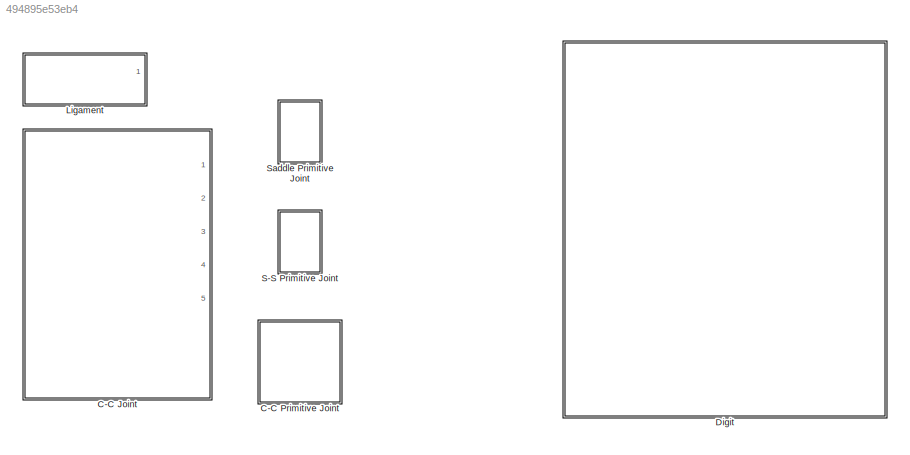
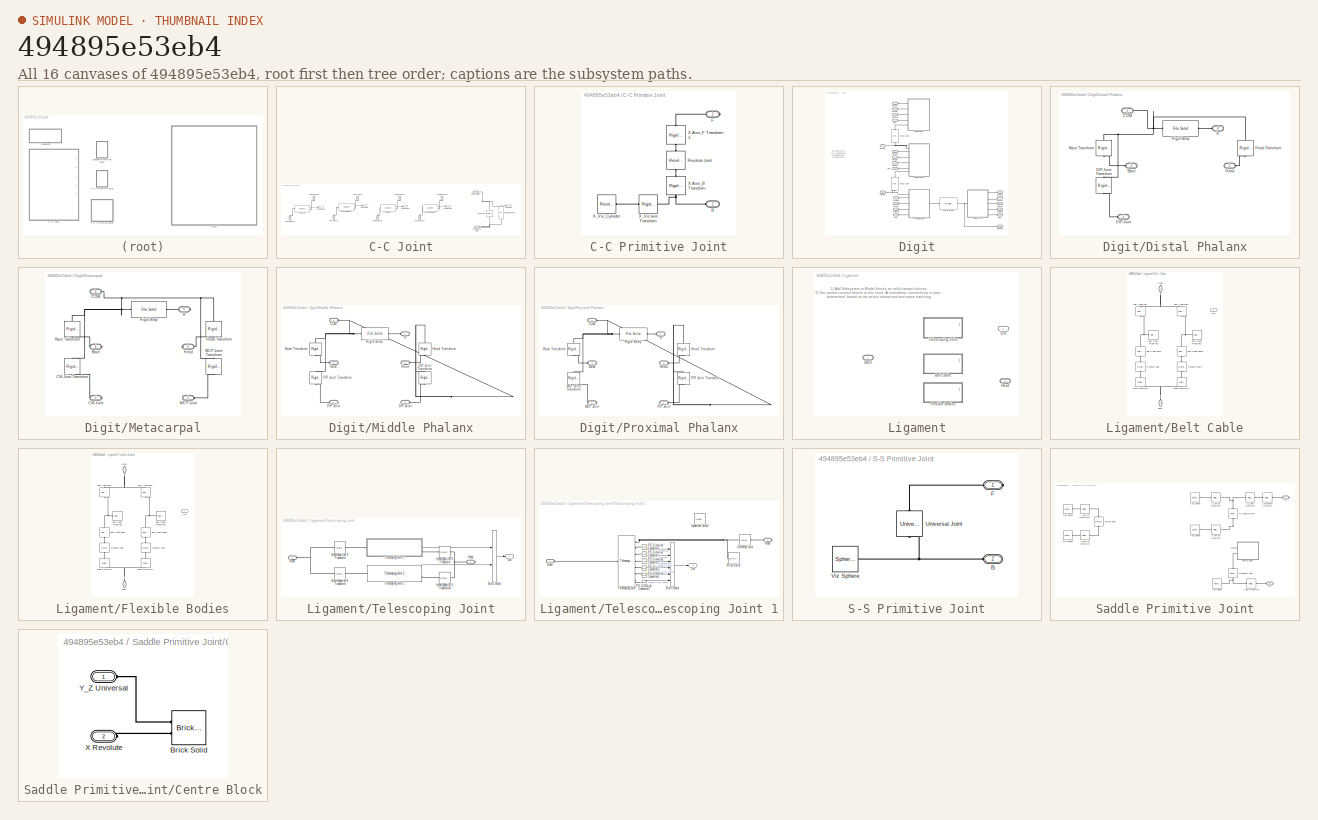
[diagram: thumbnail index - all 16 canvases of the model, root first then tree order]
MODEL slx_494895e53eb4
KIND library
CONFIG AbsTol = auto
CONFIG EnableMultiTasking = off
CONFIG FixedStep = auto
CONFIG MaxStep = auto
CONFIG MinStep = auto
CONFIG RelTol = 1e-3
CONFIG SampleTimeConstraint = Unconstrained
CONFIG SolverName = VariableStepAuto
CONFIG StartTime = 0.0
CONFIG StopTime = 10.0
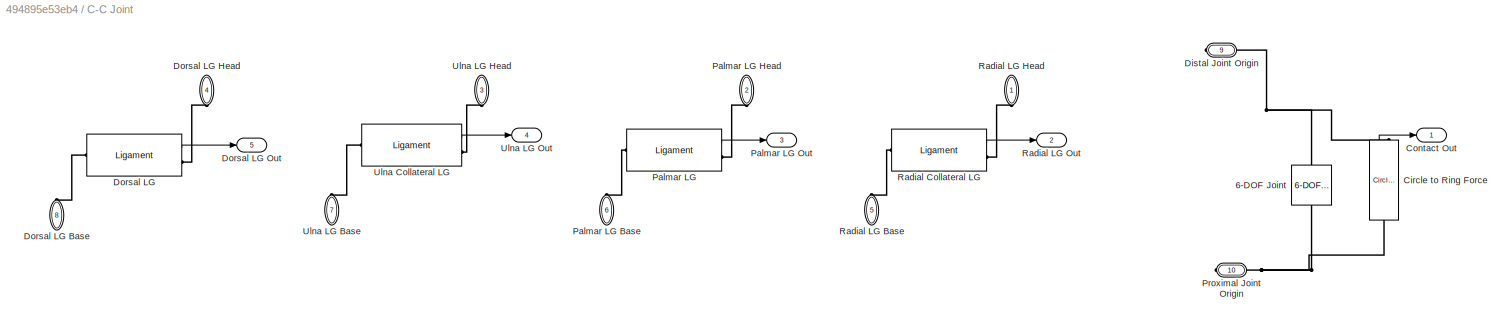
BLOCK [SubSystem] C-C Joint
  PortSchema = {"entries":[{"content":{"sides":[{"content":{"connectorIds":["LConn1","LConn2","LConn3","LConn4","LConn5","LConn6","LConn7","LConn8"]},"type":"ConnectorPlacement.EquallySpacedRectSide","uuid":"de75d0fa-dcb7-4671-a193-b6d8e2533622"},{"content":{"connectorIds":["RConn1","Out1","Out2","Out3","Out4","Out5","RConn2"],"side":"RIGHT"},"type":"ConnectorPlacement.EquallySpacedRectSide","uuid":"61947ab9-5bc...<+352ch>
  Ports = [0, 5, 0, 0, 0, 8, 2]
  RequestExecContextInheritance = off
BLOCK [Reference] C-C Joint/6-DOF Joint  REF=sm_lib/Joints/6-DOF Joint
  NameLocation = right
  Ports = [0, 0, 0, 0, 0, 1, 1]
  SourceBlock = sm_lib/Joints/6-DOF Joint
  SourceProductBaseCode = MS
  SourceType = 6-DOF Joint
BLOCK [Reference] C-C Joint/Circle to Ring Force  REF=Contact_Forces_Lib/2D/Circle to Ring Force
  NameLocation = left
  Ports = [0, 1, 0, 0, 0, 1, 1]
  SourceBlock = Contact_Forces_Lib/2D/Circle to Ring Force
  SourceType = Circle to Ring Force
BLOCK [Outport] C-C Joint/Contact Out
BLOCK [PMIOPort] C-C Joint/Distal Joint Origin
  Port = 9
  Side = Right
BLOCK [Reference] C-C Joint/Dorsal LG  REF=$bdroot/Ligament
  NameLocation = top
  Ports = [0, 1, 0, 0, 0, 1, 1]
  SourceBlock = $bdroot/Ligament
BLOCK [PMIOPort] C-C Joint/Dorsal LG Base
  Port = 8
  Side = Left
BLOCK [PMIOPort] C-C Joint/Dorsal LG Head
  NameLocation = right
  Port = 4
  Side = Left
BLOCK [Outport] C-C Joint/Dorsal LG Out
  Port = 5
BLOCK [Reference] C-C Joint/Palmar LG  REF=$bdroot/Ligament
  Ports = [0, 1, 0, 0, 0, 1, 1]
  SourceBlock = $bdroot/Ligament
BLOCK [PMIOPort] C-C Joint/Palmar LG Base
  Port = 6
  Side = Left
BLOCK [PMIOPort] C-C Joint/Palmar LG Head
  NameLocation = top
  Port = 2
  Side = Left
BLOCK [Outport] C-C Joint/Palmar LG Out
  Port = 3
BLOCK [PMIOPort] C-C Joint/Proximal Joint Origin
  Port = 10
  Side = Right
BLOCK [Reference] C-C Joint/Radial Collateral LG  REF=$bdroot/Ligament
  Ports = [0, 1, 0, 0, 0, 1, 1]
  SourceBlock = $bdroot/Ligament
BLOCK [PMIOPort] C-C Joint/Radial LG Base
  Port = 5
  Side = Left
BLOCK [PMIOPort] C-C Joint/Radial LG Head
  NameLocation = top
  Side = Left
BLOCK [Outport] C-C Joint/Radial LG Out
  Port = 2
BLOCK [Reference] C-C Joint/Ulna Collateral LG  REF=$bdroot/Ligament
  Ports = [0, 1, 0, 0, 0, 1, 1]
  SourceBlock = $bdroot/Ligament
BLOCK [PMIOPort] C-C Joint/Ulna LG Base
  Port = 7
  Side = Left
BLOCK [PMIOPort] C-C Joint/Ulna LG Head
  NameLocation = top
  Port = 3
  Side = Left
BLOCK [Outport] C-C Joint/Ulna LG Out
  Port = 4
BLOCK [SubSystem] C-C Primitive Joint
  NameLocation = left
  Ports = [0, 0, 0, 0, 0, 1, 1]
  RequestExecContextInheritance = off
BLOCK [PMIOPort] C-C Primitive Joint/B
  Port = 2
  Side = Left
BLOCK [PMIOPort] C-C Primitive Joint/F
  Side = Right
BLOCK [Reference] C-C Primitive Joint/Revolute Joint  REF=sm_lib/Joints/Revolute Joint
  NameLocation = right
  Ports = [0, 0, 0, 0, 0, 1, 1]
  SourceBlock = sm_lib/Joints/Revolute Joint
  SourceProductBaseCode = MS
  SourceType = Revolute Joint
BLOCK [Reference] C-C Primitive Joint/X Axis_B Transform  REF=sm_lib/Frames and
Transforms/Rigid
Transform
  NameLocation = left
  Ports = [0, 0, 0, 0, 0, 1, 1]
  SourceBlock = sm_lib/Frames and\nTransforms/Rigid\nTransform
  SourceProductBaseCode = MS
  SourceType = Rigid\nTransform
BLOCK [Reference] C-C Primitive Joint/X Axis_F Transform1  REF=sm_lib/Frames and
Transforms/Rigid
Transform
  NameLocation = left
  Ports = [0, 0, 0, 0, 0, 1, 1]
  SourceBlock = sm_lib/Frames and\nTransforms/Rigid\nTransform
  SourceProductBaseCode = MS
  SourceType = Rigid\nTransform
BLOCK [Reference] C-C Primitive Joint/X_Viz axis Transform  REF=sm_lib/Frames and
Transforms/Rigid
Transform
  Ports = [0, 0, 0, 0, 0, 1, 1]
  SourceBlock = sm_lib/Frames and\nTransforms/Rigid\nTransform
  SourceProductBaseCode = MS
  SourceType = Rigid\nTransform
BLOCK [Reference] C-C Primitive Joint/X_Viz_Cylinder  REF=sm_lib/Body Elements/Revolved Solid
  Ports = [0, 0, 0, 0, 0, 0, 1]
  SourceBlock = sm_lib/Body Elements/Revolved Solid
  SourceProductBaseCode = MS
  SourceType = Revolved Solid
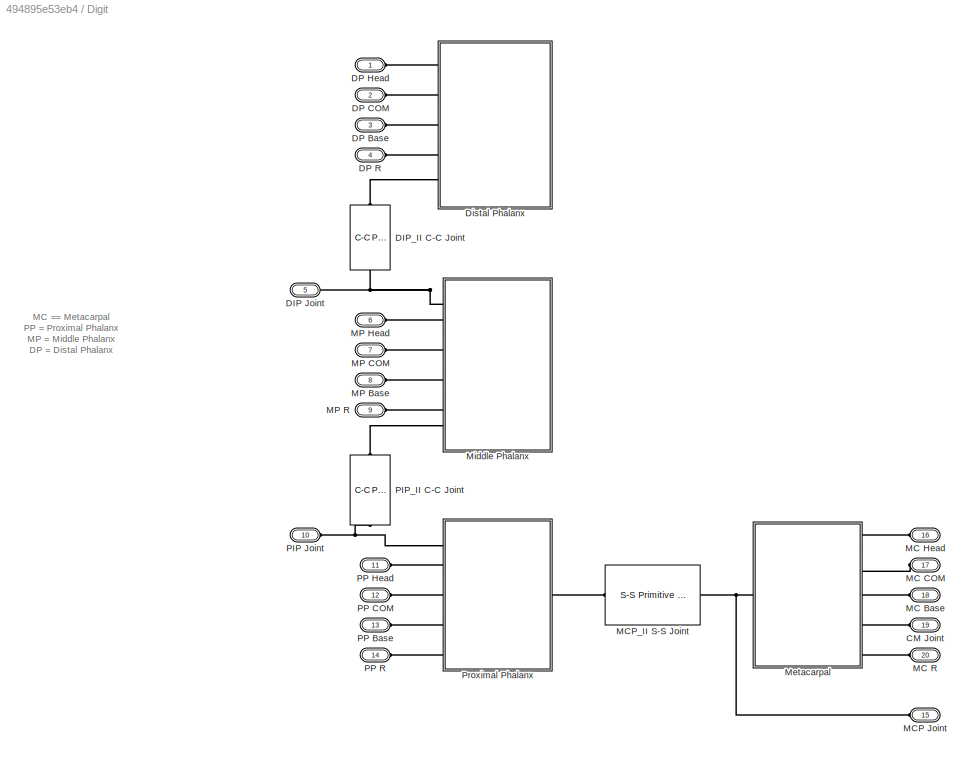
BLOCK [SubSystem] Digit
  Ports = [0, 0, 0, 0, 0, 20]
  RequestExecContextInheritance = off
BLOCK [PMIOPort] Digit/CM Joint
  Port = 19
  Side = Left
BLOCK [PMIOPort] Digit/DIP Joint
  Port = 5
  Side = Left
BLOCK [Reference] Digit/DIP_II C-C Joint  REF=$bdroot/C-C Primitive Joint
  NameLocation = left
  Ports = [0, 0, 0, 0, 0, 1, 1]
  SourceBlock = $bdroot/C-C Primitive Joint
BLOCK [PMIOPort] Digit/DP Base
  Port = 3
  Side = Left
BLOCK [PMIOPort] Digit/DP COM
  Port = 2
  Side = Left
BLOCK [PMIOPort] Digit/DP Head
  Side = Left
BLOCK [PMIOPort] Digit/DP R
  Port = 4
  Side = Left
BLOCK [SubSystem] Digit/Distal Phalanx
  Ports = [0, 0, 0, 0, 0, 5]
  RequestExecContextInheritance = off
BLOCK [PMIOPort] Digit/Distal Phalanx/Base
  Port = 3
  Side = Left
BLOCK [Reference] Digit/Distal Phalanx/Base Transform  REF=sm_lib/Frames and
Transforms/Rigid
Transform
  NameLocation = left
  Ports = [0, 0, 0, 0, 0, 1, 1]
  SourceBlock = sm_lib/Frames and\nTransforms/Rigid\nTransform
  SourceProductBaseCode = MS
  SourceType = Rigid\nTransform
BLOCK [PMIOPort] Digit/Distal Phalanx/COM
  Port = 2
  Side = Left
BLOCK [PMIOPort] Digit/Distal Phalanx/DIP Joint
  Port = 5
  Side = Left
BLOCK [Reference] Digit/Distal Phalanx/DIP Joint Transform  REF=sm_lib/Frames and
Transforms/Rigid
Transform
  NameLocation = left
  Ports = [0, 0, 0, 0, 0, 1, 1]
  SourceBlock = sm_lib/Frames and\nTransforms/Rigid\nTransform
  SourceProductBaseCode = MS
  SourceType = Rigid\nTransform
BLOCK [PMIOPort] Digit/Distal Phalanx/Head
  Side = Left
BLOCK [Reference] Digit/Distal Phalanx/Head Transform  REF=sm_lib/Frames and
Transforms/Rigid
Transform
  NameLocation = left
  Ports = [0, 0, 0, 0, 0, 1, 1]
  SourceBlock = sm_lib/Frames and\nTransforms/Rigid\nTransform
  SourceProductBaseCode = MS
  SourceType = Rigid\nTransform
BLOCK [PMIOPort] Digit/Distal Phalanx/R
  Port = 4
  Side = Left
BLOCK [Reference] Digit/Distal Phalanx/Rigid Body  REF=sm_lib/Body Elements/File Solid
  Ports = [0, 0, 0, 0, 0, 1, 1]
  SourceBlock = sm_lib/Body Elements/File Solid
  SourceProductBaseCode = MS
  SourceType = File Solid
BLOCK [PMIOPort] Digit/MC Base
  Port = 18
  Side = Left
BLOCK [PMIOPort] Digit/MC COM
  Port = 17
  Side = Left
BLOCK [PMIOPort] Digit/MC Head
  Port = 16
  Side = Left
BLOCK [PMIOPort] Digit/MC R
  Port = 20
  Side = Left
BLOCK [PMIOPort] Digit/MCP Joint
  Port = 15
  Side = Left
BLOCK [Reference] Digit/MCP_II S-S Joint  REF=$bdroot/S-S Primitive Joint
  Ports = [0, 0, 0, 0, 0, 1, 1]
  SourceBlock = $bdroot/S-S Primitive Joint
BLOCK [PMIOPort] Digit/MP Base
  Port = 8
  Side = Left
BLOCK [PMIOPort] Digit/MP COM
  Port = 7
  Side = Left
BLOCK [PMIOPort] Digit/MP Head
  Port = 6
  Side = Left
BLOCK [PMIOPort] Digit/MP R
  Port = 9
  Side = Left
BLOCK [SubSystem] Digit/Metacarpal
  Ports = [0, 0, 0, 0, 0, 1, 5]
  RequestExecContextInheritance = off
BLOCK [PMIOPort] Digit/Metacarpal/Base
  Port = 4
  Side = Right
BLOCK [Reference] Digit/Metacarpal/Base Transform  REF=sm_lib/Frames and
Transforms/Rigid
Transform
  NameLocation = left
  Ports = [0, 0, 0, 0, 0, 1, 1]
  SourceBlock = sm_lib/Frames and\nTransforms/Rigid\nTransform
  SourceProductBaseCode = MS
  SourceType = Rigid\nTransform
BLOCK [PMIOPort] Digit/Metacarpal/CM Joint
  Port = 5
  Side = Right
BLOCK [Reference] Digit/Metacarpal/CM Joint Transform  REF=sm_lib/Frames and
Transforms/Rigid
Transform
  NameLocation = left
  Ports = [0, 0, 0, 0, 0, 1, 1]
  SourceBlock = sm_lib/Frames and\nTransforms/Rigid\nTransform
  SourceProductBaseCode = MS
  SourceType = Rigid\nTransform
BLOCK [PMIOPort] Digit/Metacarpal/COM
  Port = 3
  Side = Right
BLOCK [PMIOPort] Digit/Metacarpal/Head
  Port = 2
  Side = Right
BLOCK [Reference] Digit/Metacarpal/Head Transform  REF=sm_lib/Frames and
Transforms/Rigid
Transform
  NameLocation = right
  Ports = [0, 0, 0, 0, 0, 1, 1]
  SourceBlock = sm_lib/Frames and\nTransforms/Rigid\nTransform
  SourceProductBaseCode = MS
  SourceType = Rigid\nTransform
BLOCK [PMIOPort] Digit/Metacarpal/MCP Joint
  Side = Left
BLOCK [Reference] Digit/Metacarpal/MCP Joint Transform  REF=sm_lib/Frames and
Transforms/Rigid
Transform
  NameLocation = left
  Ports = [0, 0, 0, 0, 0, 1, 1]
  SourceBlock = sm_lib/Frames and\nTransforms/Rigid\nTransform
  SourceProductBaseCode = MS
  SourceType = Rigid\nTransform
BLOCK [PMIOPort] Digit/Metacarpal/R
  Port = 6
  Side = Right
BLOCK [Reference] Digit/Metacarpal/Rigid Body  REF=sm_lib/Body Elements/File Solid
  Ports = [0, 0, 0, 0, 0, 1, 1]
  SourceBlock = sm_lib/Body Elements/File Solid
  SourceProductBaseCode = MS
  SourceType = File Solid
BLOCK [SubSystem] Digit/Middle Phalanx
  Ports = [0, 0, 0, 0, 0, 6]
  RequestExecContextInheritance = off
BLOCK [PMIOPort] Digit/Middle Phalanx/Base
  Port = 4
  Side = Left
BLOCK [Reference] Digit/Middle Phalanx/Base Transform  REF=sm_lib/Frames and
Transforms/Rigid
Transform
  NameLocation = left
  Ports = [0, 0, 0, 0, 0, 1, 1]
  SourceBlock = sm_lib/Frames and\nTransforms/Rigid\nTransform
  SourceProductBaseCode = MS
  SourceType = Rigid\nTransform
BLOCK [PMIOPort] Digit/Middle Phalanx/COM
  Port = 3
  Side = Left
BLOCK [PMIOPort] Digit/Middle Phalanx/DIP Joint
  Side = Left
BLOCK [Reference] Digit/Middle Phalanx/DIP Joint Transform  REF=sm_lib/Frames and
Transforms/Rigid
Transform
  NameLocation = right
  Ports = [0, 0, 0, 0, 0, 1, 1]
  SourceBlock = sm_lib/Frames and\nTransforms/Rigid\nTransform
  SourceProductBaseCode = MS
  SourceType = Rigid\nTransform
BLOCK [PMIOPort] Digit/Middle Phalanx/Head
  Port = 2
  Side = Left
BLOCK [Reference] Digit/Middle Phalanx/Head Transform  REF=sm_lib/Frames and
Transforms/Rigid
Transform
  NameLocation = right
  Ports = [0, 0, 0, 0, 0, 1, 1]
  SourceBlock = sm_lib/Frames and\nTransforms/Rigid\nTransform
  SourceProductBaseCode = MS
  SourceType = Rigid\nTransform
BLOCK [PMIOPort] Digit/Middle Phalanx/PIP Joint
  Port = 6
  Side = Left
BLOCK [Reference] Digit/Middle Phalanx/PIP Joint Transform  REF=sm_lib/Frames and
Transforms/Rigid
Transform
  NameLocation = left
  Ports = [0, 0, 0, 0, 0, 1, 1]
  SourceBlock = sm_lib/Frames and\nTransforms/Rigid\nTransform
  SourceProductBaseCode = MS
  SourceType = Rigid\nTransform
BLOCK [PMIOPort] Digit/Middle Phalanx/R
  Port = 5
  Side = Left
BLOCK [Reference] Digit/Middle Phalanx/Rigid Body  REF=sm_lib/Body Elements/File Solid
  Ports = [0, 0, 0, 0, 0, 1, 1]
  SourceBlock = sm_lib/Body Elements/File Solid
  SourceProductBaseCode = MS
  SourceType = File Solid
BLOCK [PMIOPort] Digit/PIP Joint
  Port = 10
  Side = Left
BLOCK [Reference] Digit/PIP_II C-C Joint  REF=$bdroot/C-C Primitive Joint
  NameLocation = left
  Ports = [0, 0, 0, 0, 0, 1, 1]
  SourceBlock = $bdroot/C-C Primitive Joint
BLOCK [PMIOPort] Digit/PP Base
  Port = 13
  Side = Left
BLOCK [PMIOPort] Digit/PP COM
  Port = 12
  Side = Left
BLOCK [PMIOPort] Digit/PP Head
  Port = 11
  Side = Left
BLOCK [PMIOPort] Digit/PP R
  Port = 14
  Side = Left
BLOCK [SubSystem] Digit/Proximal Phalanx
  Ports = [0, 0, 0, 0, 0, 5, 1]
  RequestExecContextInheritance = off
BLOCK [PMIOPort] Digit/Proximal Phalanx/Base
  Port = 4
  Side = Left
BLOCK [Reference] Digit/Proximal Phalanx/Base Transform  REF=sm_lib/Frames and
Transforms/Rigid
Transform
  NameLocation = left
  Ports = [0, 0, 0, 0, 0, 1, 1]
  SourceBlock = sm_lib/Frames and\nTransforms/Rigid\nTransform
  SourceProductBaseCode = MS
  SourceType = Rigid\nTransform
BLOCK [PMIOPort] Digit/Proximal Phalanx/COM
  Port = 3
  Side = Left
BLOCK [PMIOPort] Digit/Proximal Phalanx/Head
  Port = 2
  Side = Left
BLOCK [Reference] Digit/Proximal Phalanx/Head Transform  REF=sm_lib/Frames and
Transforms/Rigid
Transform
  NameLocation = right
  Ports = [0, 0, 0, 0, 0, 1, 1]
  SourceBlock = sm_lib/Frames and\nTransforms/Rigid\nTransform
  SourceProductBaseCode = MS
  SourceType = Rigid\nTransform
BLOCK [PMIOPort] Digit/Proximal Phalanx/MCP Joint
  Port = 6
  Side = Right
BLOCK [Reference] Digit/Proximal Phalanx/MCP Joint Transform  REF=sm_lib/Frames and
Transforms/Rigid
Transform
  NameLocation = left
  Ports = [0, 0, 0, 0, 0, 1, 1]
  SourceBlock = sm_lib/Frames and\nTransforms/Rigid\nTransform
  SourceProductBaseCode = MS
  SourceType = Rigid\nTransform
BLOCK [PMIOPort] Digit/Proximal Phalanx/PIP Joint
  Side = Left
BLOCK [Reference] Digit/Proximal Phalanx/PIP Joint Transform  REF=sm_lib/Frames and
Transforms/Rigid
Transform
  NameLocation = left
  Ports = [0, 0, 0, 0, 0, 1, 1]
  SourceBlock = sm_lib/Frames and\nTransforms/Rigid\nTransform
  SourceProductBaseCode = MS
  SourceType = Rigid\nTransform
BLOCK [PMIOPort] Digit/Proximal Phalanx/R
  Port = 5
  Side = Left
BLOCK [Reference] Digit/Proximal Phalanx/Rigid Body  REF=sm_lib/Body Elements/File Solid
  Ports = [0, 0, 0, 0, 0, 1, 1]
  SourceBlock = sm_lib/Body Elements/File Solid
  SourceProductBaseCode = MS
  SourceType = File Solid
BLOCK [SubSystem] Ligament
  Ports = [0, 1, 0, 0, 0, 1, 1]
  RequestExecContextInheritance = off
  Variant = on
BLOCK [PMIOPort] Ligament/Base
  Side = Left
BLOCK [SubSystem] Ligament/Belt Cable
  Ports = [0, 1, 0, 0, 0, 1, 1]
  RequestExecContextInheritance = off
  VariantControl = false
BLOCK [PMIOPort] Ligament/Belt Cable/Base
  NameLocation = right
  Port = 2
  Side = Left
BLOCK [Reference] Ligament/Belt Cable/Belt-Cable End  REF=sm_lib/Belts and Cables/Belt-Cable End
  NameLocation = left
  Ports = [0, 0, 0, 0, 0, 1, 1]
  SourceBlock = sm_lib/Belts and Cables/Belt-Cable End
  SourceProductBaseCode = MS
  SourceType = Belt-Cable End
BLOCK [Reference] Ligament/Belt Cable/Belt-Cable End1  REF=sm_lib/Belts and Cables/Belt-Cable End
  NameLocation = left
  Ports = [0, 0, 0, 0, 0, 1, 1]
  SourceBlock = sm_lib/Belts and Cables/Belt-Cable End
  SourceProductBaseCode = MS
  SourceType = Belt-Cable End
BLOCK [Reference] Ligament/Belt Cable/Belt-Cable Properties  REF=sm_lib/Belts and Cables/Belt-Cable
Properties
  Ports = [0, 0, 0, 0, 0, 1]
  SourceBlock = sm_lib/Belts and Cables/Belt-Cable\nProperties
  SourceProductBaseCode = MS
  SourceType = Belt-Cable\nProperties
BLOCK [Reference] Ligament/Belt Cable/Belt-Cable Properties1  REF=sm_lib/Belts and Cables/Belt-Cable
Properties
  Ports = [0, 0, 0, 0, 0, 1]
  SourceBlock = sm_lib/Belts and Cables/Belt-Cable\nProperties
  SourceProductBaseCode = MS
  SourceType = Belt-Cable\nProperties
BLOCK [Reference] Ligament/Belt Cable/Belt-Cable Spool  REF=sm_lib/Belts and Cables/Belt-Cable Spool
  NameLocation = right
  Ports = [0, 0, 0, 0, 0, 1, 1]
  SourceBlock = sm_lib/Belts and Cables/Belt-Cable Spool
  SourceProductBaseCode = MS
  SourceType = Belt-Cable Spool
BLOCK [Reference] Ligament/Belt Cable/Belt-Cable Spool1  REF=sm_lib/Belts and Cables/Belt-Cable Spool
  NameLocation = right
  Ports = [0, 0, 0, 0, 0, 1, 1]
  SourceBlock = sm_lib/Belts and Cables/Belt-Cable Spool
  SourceProductBaseCode = MS
  SourceType = Belt-Cable Spool
BLOCK [PMIOPort] Ligament/Belt Cable/Head
  NameLocation = left
  Side = Right
BLOCK [Outport] Ligament/Belt Cable/Out
BLOCK [Reference] Ligament/Belt Cable/Revolute Joint  REF=sm_lib/Joints/Revolute Joint
  NameLocation = right
  Ports = [0, 0, 0, 0, 0, 1, 1]
  SourceBlock = sm_lib/Joints/Revolute Joint
  SourceProductBaseCode = MS
  SourceType = Revolute Joint
BLOCK [Reference] Ligament/Belt Cable/Revolute Joint1  REF=sm_lib/Joints/Revolute Joint
  NameLocation = right
  Ports = [0, 0, 0, 0, 0, 1, 1]
  SourceBlock = sm_lib/Joints/Revolute Joint
  SourceProductBaseCode = MS
  SourceType = Revolute Joint
BLOCK [Reference] Ligament/Belt Cable/Rigid Transform  REF=sm_lib/Frames and
Transforms/Rigid
Transform
  NameLocation = right
  Ports = [0, 0, 0, 0, 0, 1, 1]
  SourceBlock = sm_lib/Frames and\nTransforms/Rigid\nTransform
  SourceProductBaseCode = MS
  SourceType = Rigid\nTransform
BLOCK [Reference] Ligament/Belt Cable/Rigid Transform1  REF=sm_lib/Frames and
Transforms/Rigid
Transform
  NameLocation = right
  Ports = [0, 0, 0, 0, 0, 1, 1]
  SourceBlock = sm_lib/Frames and\nTransforms/Rigid\nTransform
  SourceProductBaseCode = MS
  SourceType = Rigid\nTransform
BLOCK [SubSystem] Ligament/Flexible Bodies
  Ports = [0, 1, 0, 0, 0, 1, 1]
  RequestExecContextInheritance = off
  VariantControl = false
BLOCK [PMIOPort] Ligament/Flexible Bodies/Base
  NameLocation = right
  Port = 2
  Side = Left
BLOCK [Reference] Ligament/Flexible Bodies/Belt-Cable End  REF=sm_lib/Belts and Cables/Belt-Cable End
  NameLocation = left
  Ports = [0, 0, 0, 0, 0, 1, 1]
  SourceBlock = sm_lib/Belts and Cables/Belt-Cable End
  SourceProductBaseCode = MS
  SourceType = Belt-Cable End
BLOCK [Reference] Ligament/Flexible Bodies/Belt-Cable End1  REF=sm_lib/Belts and Cables/Belt-Cable End
  NameLocation = left
  Ports = [0, 0, 0, 0, 0, 1, 1]
  SourceBlock = sm_lib/Belts and Cables/Belt-Cable End
  SourceProductBaseCode = MS
  SourceType = Belt-Cable End
BLOCK [Reference] Ligament/Flexible Bodies/Belt-Cable Properties  REF=sm_lib/Belts and Cables/Belt-Cable
Properties
  Ports = [0, 0, 0, 0, 0, 1]
  SourceBlock = sm_lib/Belts and Cables/Belt-Cable\nProperties
  SourceProductBaseCode = MS
  SourceType = Belt-Cable\nProperties
BLOCK [Reference] Ligament/Flexible Bodies/Belt-Cable Properties1  REF=sm_lib/Belts and Cables/Belt-Cable
Properties
  Ports = [0, 0, 0, 0, 0, 1]
  SourceBlock = sm_lib/Belts and Cables/Belt-Cable\nProperties
  SourceProductBaseCode = MS
  SourceType = Belt-Cable\nProperties
BLOCK [Reference] Ligament/Flexible Bodies/Belt-Cable Spool  REF=sm_lib/Belts and Cables/Belt-Cable Spool
  NameLocation = right
  Ports = [0, 0, 0, 0, 0, 1, 1]
  SourceBlock = sm_lib/Belts and Cables/Belt-Cable Spool
  SourceProductBaseCode = MS
  SourceType = Belt-Cable Spool
BLOCK [Reference] Ligament/Flexible Bodies/Belt-Cable Spool1  REF=sm_lib/Belts and Cables/Belt-Cable Spool
  NameLocation = right
  Ports = [0, 0, 0, 0, 0, 1, 1]
  SourceBlock = sm_lib/Belts and Cables/Belt-Cable Spool
  SourceProductBaseCode = MS
  SourceType = Belt-Cable Spool
BLOCK [PMIOPort] Ligament/Flexible Bodies/Head
  NameLocation = left
  Side = Right
BLOCK [Outport] Ligament/Flexible Bodies/Out
BLOCK [Reference] Ligament/Flexible Bodies/Revolute Joint  REF=sm_lib/Joints/Revolute Joint
  NameLocation = right
  Ports = [0, 0, 0, 0, 0, 1, 1]
  SourceBlock = sm_lib/Joints/Revolute Joint
  SourceProductBaseCode = MS
  SourceType = Revolute Joint
BLOCK [Reference] Ligament/Flexible Bodies/Revolute Joint1  REF=sm_lib/Joints/Revolute Joint
  NameLocation = right
  Ports = [0, 0, 0, 0, 0, 1, 1]
  SourceBlock = sm_lib/Joints/Revolute Joint
  SourceProductBaseCode = MS
  SourceType = Revolute Joint
BLOCK [Reference] Ligament/Flexible Bodies/Rigid Transform  REF=sm_lib/Frames and
Transforms/Rigid
Transform
  NameLocation = right
  Ports = [0, 0, 0, 0, 0, 1, 1]
  SourceBlock = sm_lib/Frames and\nTransforms/Rigid\nTransform
  SourceProductBaseCode = MS
  SourceType = Rigid\nTransform
BLOCK [Reference] Ligament/Flexible Bodies/Rigid Transform1  REF=sm_lib/Frames and
Transforms/Rigid
Transform
  NameLocation = right
  Ports = [0, 0, 0, 0, 0, 1, 1]
  SourceBlock = sm_lib/Frames and\nTransforms/Rigid\nTransform
  SourceProductBaseCode = MS
  SourceType = Rigid\nTransform
BLOCK [PMIOPort] Ligament/Head
  Port = 2
  Side = Right
BLOCK [Outport] Ligament/Out
BLOCK [SubSystem] Ligament/Telescoping Joint
  Ports = [0, 1, 0, 0, 0, 1, 1]
  RequestExecContextInheritance = off
  VariantControl = true
BLOCK [PMIOPort] Ligament/Telescoping Joint/Base
  Side = Left
BLOCK [Reference] Ligament/Telescoping Joint/Base negative X Transform  REF=sm_lib/Frames and
Transforms/Rigid
Transform
  Ports = [0, 0, 0, 0, 0, 1, 1]
  SourceBlock = sm_lib/Frames and\nTransforms/Rigid\nTransform
  SourceProductBaseCode = MS
  SourceType = Rigid\nTransform
BLOCK [Reference] Ligament/Telescoping Joint/Base positive X Transform  REF=sm_lib/Frames and
Transforms/Rigid
Transform
  Ports = [0, 0, 0, 0, 0, 1, 1]
  SourceBlock = sm_lib/Frames and\nTransforms/Rigid\nTransform
  SourceProductBaseCode = MS
  SourceType = Rigid\nTransform
BLOCK [BusCreator] Ligament/Telescoping Joint/Bus Creator
  DisplayOption = bar
  InheritFromInputs = on
  Inputs = 2
  Ports = [2, 1]
BLOCK [PMIOPort] Ligament/Telescoping Joint/Head
  Port = 2
  Side = Right
BLOCK [Reference] Ligament/Telescoping Joint/Head negative X Transform4  REF=sm_lib/Frames and
Transforms/Rigid
Transform
  Ports = [0, 0, 0, 0, 0, 1, 1]
  SourceBlock = sm_lib/Frames and\nTransforms/Rigid\nTransform
  SourceProductBaseCode = MS
  SourceType = Rigid\nTransform
BLOCK [Reference] Ligament/Telescoping Joint/Head positive X Transform  REF=sm_lib/Frames and
Transforms/Rigid
Transform
  Ports = [0, 0, 0, 0, 0, 1, 1]
  SourceBlock = sm_lib/Frames and\nTransforms/Rigid\nTransform
  SourceProductBaseCode = MS
  SourceType = Rigid\nTransform
BLOCK [Outport] Ligament/Telescoping Joint/Out
BLOCK [SubSystem] Ligament/Telescoping Joint/Telescoping Joint 1
  Ports = [0, 1, 0, 0, 0, 1, 1]
  RequestExecContextInheritance = off
BLOCK [PMIOPort] Ligament/Telescoping Joint/Telescoping Joint 1/Base
  Port = 2
  Side = Left
BLOCK [Reference] Ligament/Telescoping Joint/Telescoping Joint 1/Brick Solid  REF=sm_lib/Body Elements/Brick Solid
  Ports = [0, 0, 0, 0, 0, 1]
  SourceBlock = sm_lib/Body Elements/Brick Solid
  SourceProductBaseCode = MS
  SourceType = Brick Solid
BLOCK [BusCreator] Ligament/Telescoping Joint/Telescoping Joint 1/Bus Creator
  DisplayOption = bar
  InheritFromInputs = on
  Inputs = 6
  Ports = [6, 1]
BLOCK [PMIOPort] Ligament/Telescoping Joint/Telescoping Joint 1/Head
  Side = Right
BLOCK [Outport] Ligament/Telescoping Joint/Telescoping Joint 1/Out
BLOCK [Reference] Ligament/Telescoping Joint/Telescoping Joint 1/PS-Simulink Converter  REF=nesl_utility/PS-Simulink
Converter
  Ports = [0, 1, 0, 0, 0, 1]
  SourceBlock = nesl_utility/PS-Simulink\nConverter
  SourceProductBaseCode = PW,SS
  SourceType = PS-Simulink\nConverter
BLOCK [Reference] Ligament/Telescoping Joint/Telescoping Joint 1/PS-Simulink Converter1  REF=nesl_utility/PS-Simulink
Converter
  Ports = [0, 1, 0, 0, 0, 1]
  SourceBlock = nesl_utility/PS-Simulink\nConverter
  SourceProductBaseCode = PW,SS
  SourceType = PS-Simulink\nConverter
BLOCK [Reference] Ligament/Telescoping Joint/Telescoping Joint 1/PS-Simulink Converter2  REF=nesl_utility/PS-Simulink
Converter
  Ports = [0, 1, 0, 0, 0, 1]
  SourceBlock = nesl_utility/PS-Simulink\nConverter
  SourceProductBaseCode = PW,SS
  SourceType = PS-Simulink\nConverter
BLOCK [Reference] Ligament/Telescoping Joint/Telescoping Joint 1/PS-Simulink Converter3  REF=nesl_utility/PS-Simulink
Converter
  Ports = [0, 1, 0, 0, 0, 1]
  SourceBlock = nesl_utility/PS-Simulink\nConverter
  SourceProductBaseCode = PW,SS
  SourceType = PS-Simulink\nConverter
BLOCK [Reference] Ligament/Telescoping Joint/Telescoping Joint 1/PS-Simulink Converter4  REF=nesl_utility/PS-Simulink
Converter
  Ports = [0, 1, 0, 0, 0, 1]
  SourceBlock = nesl_utility/PS-Simulink\nConverter
  SourceProductBaseCode = PW,SS
  SourceType = PS-Simulink\nConverter
BLOCK [Reference] Ligament/Telescoping Joint/Telescoping Joint 1/PS-Simulink Converter5  REF=nesl_utility/PS-Simulink
Converter
  Ports = [0, 1, 0, 0, 0, 1]
  SourceBlock = nesl_utility/PS-Simulink\nConverter
  SourceProductBaseCode = PW,SS
  SourceType = PS-Simulink\nConverter
BLOCK [Reference] Ligament/Telescoping Joint/Telescoping Joint 1/Spherical Joint2  REF=sm_lib/Joints/Spherical
Joint
  Commented = on
  Ports = [0, 0, 0, 0, 0, 1, 1]
  SourceBlock = sm_lib/Joints/Spherical\nJoint
  SourceProductBaseCode = MS
  SourceType = Spherical\nJoint
BLOCK [Reference] Ligament/Telescoping Joint/Telescoping Joint 1/Telescoping Joint  REF=sm_lib/Joints/Telescoping
Joint
  Ports = [0, 0, 0, 0, 0, 1, 7]
  SourceBlock = sm_lib/Joints/Telescoping\nJoint
  SourceProductBaseCode = MS
  SourceType = Telescoping\nJoint
BLOCK [Reference] Ligament/Telescoping Joint/Telescoping Joint 1/Universal Joint  REF=sm_lib/Joints/Universal
Joint
  Ports = [0, 0, 0, 0, 0, 1, 1]
  SourceBlock = sm_lib/Joints/Universal\nJoint
  SourceProductBaseCode = MS
  SourceType = Universal\nJoint
BLOCK [Reference] Ligament/Telescoping Joint/Telescoping Joint 2  REF=$bdroot/Ligament/Telescoping Joint/Telescoping Joint 1
  Ports = [0, 1, 0, 0, 0, 1, 1]
  SourceBlock = $bdroot/Ligament/Telescoping Joint/Telescoping Joint 1
  SourceType = SubSystem
BLOCK [SubSystem] S-S Primitive Joint
  Ports = [0, 0, 0, 0, 0, 1, 1]
  RequestExecContextInheritance = off
BLOCK [PMIOPort] S-S Primitive Joint/B
  Port = 2
  Side = Left
BLOCK [PMIOPort] S-S Primitive Joint/F
  Side = Right
BLOCK [Reference] S-S Primitive Joint/Universal Joint  REF=sm_lib/Joints/Universal
Joint
  NameLocation = right
  Ports = [0, 0, 0, 0, 0, 1, 1]
  SourceBlock = sm_lib/Joints/Universal\nJoint
  SourceProductBaseCode = MS
  SourceType = Universal\nJoint
BLOCK [Reference] S-S Primitive Joint/Viz Sphere  REF=sm_lib/Body Elements/Spherical Solid
  Ports = [0, 0, 0, 0, 0, 0, 1]
  SourceBlock = sm_lib/Body Elements/Spherical Solid
  SourceProductBaseCode = MS
  SourceType = Spherical Solid
BLOCK [SubSystem] Saddle Primitive Joint
  Ports = [0, 0, 0, 0, 0, 1, 1]
  RequestExecContextInheritance = off
BLOCK [PMIOPort] Saddle Primitive Joint/B
  Port = 2
  Side = Left
BLOCK [SubSystem] Saddle Primitive Joint/Centre Block
  Ports = [0, 0, 0, 0, 0, 2]
  RequestExecContextInheritance = off
BLOCK [Reference] Saddle Primitive Joint/Centre Block/Brick Solid  REF=sm_lib/Body Elements/Brick Solid
  Ports = [0, 0, 0, 0, 0, 2, 1]
  SourceBlock = sm_lib/Body Elements/Brick Solid
  SourceProductBaseCode = MS
  SourceType = Brick Solid
BLOCK [PMIOPort] Saddle Primitive Joint/Centre Block/X Revolute
  Port = 2
  Side = Left
BLOCK [PMIOPort] Saddle Primitive Joint/Centre Block/Y_Z Universal
  Side = Left
BLOCK [PMIOPort] Saddle Primitive Joint/F
  Side = Right
BLOCK [Reference] Saddle Primitive Joint/Gimbal Joint  REF=sm_lib/Joints/Gimbal Joint
  Commented = on
  NameLocation = right
  Ports = [0, 0, 0, 0, 0, 1, 1]
  SourceBlock = sm_lib/Joints/Gimbal Joint
  SourceProductBaseCode = MS
  SourceType = Gimbal Joint
BLOCK [Reference] Saddle Primitive Joint/X Align Transform  REF=sm_lib/Frames and
Transforms/Rigid
Transform
  Ports = [0, 0, 0, 0, 0, 1, 1]
  SourceBlock = sm_lib/Frames and\nTransforms/Rigid\nTransform
  SourceProductBaseCode = MS
  SourceType = Rigid\nTransform
BLOCK [Reference] Saddle Primitive Joint/X Revolute Joint  REF=sm_lib/Joints/Revolute Joint
  NameLocation = right
  Ports = [0, 0, 0, 0, 0, 1, 1]
  SourceBlock = sm_lib/Joints/Revolute Joint
  SourceProductBaseCode = MS
  SourceType = Revolute Joint
BLOCK [Reference] Saddle Primitive Joint/X Viz Cylinder  REF=sm_lib/Body Elements/Revolved Solid
  Ports = [0, 0, 0, 0, 0, 0, 1]
  SourceBlock = sm_lib/Body Elements/Revolved Solid
  SourceProductBaseCode = MS
  SourceType = Revolved Solid
BLOCK [Reference] Saddle Primitive Joint/X_Viz_Cylinder  REF=sm_lib/Body Elements/Revolved Solid
  Commented = on
  Ports = [0, 0, 0, 0, 0, 0, 1]
  SourceBlock = sm_lib/Body Elements/Revolved Solid
  SourceProductBaseCode = MS
  SourceType = Revolved Solid
BLOCK [Reference] Saddle Primitive Joint/X_axis_Viz Transform  REF=sm_lib/Frames and
Transforms/Rigid
Transform
  Commented = on
  Ports = [0, 0, 0, 0, 0, 1, 1]
  SourceBlock = sm_lib/Frames and\nTransforms/Rigid\nTransform
  SourceProductBaseCode = MS
  SourceType = Rigid\nTransform
BLOCK [Reference] Saddle Primitive Joint/Y Axis Viz Transform  REF=sm_lib/Frames and
Transforms/Rigid
Transform
  Ports = [0, 0, 0, 0, 0, 1, 1]
  SourceBlock = sm_lib/Frames and\nTransforms/Rigid\nTransform
  SourceProductBaseCode = MS
  SourceType = Rigid\nTransform
BLOCK [Reference] Saddle Primitive Joint/Y Viz Cylinder  REF=sm_lib/Body Elements/Revolved Solid
  Ports = [0, 0, 0, 0, 0, 0, 1]
  SourceBlock = sm_lib/Body Elements/Revolved Solid
  SourceProductBaseCode = MS
  SourceType = Revolved Solid
BLOCK [Reference] Saddle Primitive Joint/Y_Viz_Cylinder  REF=sm_lib/Body Elements/Revolved Solid
  Commented = on
  Ports = [0, 0, 0, 0, 0, 0, 1]
  SourceBlock = sm_lib/Body Elements/Revolved Solid
  SourceProductBaseCode = MS
  SourceType = Revolved Solid
BLOCK [Reference] Saddle Primitive Joint/Y_Z Align Transform  REF=sm_lib/Frames and
Transforms/Rigid
Transform
  Ports = [0, 0, 0, 0, 0, 1, 1]
  SourceBlock = sm_lib/Frames and\nTransforms/Rigid\nTransform
  SourceProductBaseCode = MS
  SourceType = Rigid\nTransform
BLOCK [Reference] Saddle Primitive Joint/Y_Z Universal Joint  REF=sm_lib/Joints/Universal
Joint
  NameLocation = right
  Ports = [0, 0, 0, 0, 0, 1, 1]
  SourceBlock = sm_lib/Joints/Universal\nJoint
  SourceProductBaseCode = MS
  SourceType = Universal\nJoint
BLOCK [Reference] Saddle Primitive Joint/Y_axis_Viz Transform1  REF=sm_lib/Frames and
Transforms/Rigid
Transform
  Commented = on
  Ports = [0, 0, 0, 0, 0, 1, 1]
  SourceBlock = sm_lib/Frames and\nTransforms/Rigid\nTransform
  SourceProductBaseCode = MS
  SourceType = Rigid\nTransform
BLOCK [Reference] Saddle Primitive Joint/Z Axis Viz Transform  REF=sm_lib/Frames and
Transforms/Rigid
Transform
  Ports = [0, 0, 0, 0, 0, 1, 1]
  SourceBlock = sm_lib/Frames and\nTransforms/Rigid\nTransform
  SourceProductBaseCode = MS
  SourceType = Rigid\nTransform
BLOCK [Reference] Saddle Primitive Joint/Z Translation Transform  REF=sm_lib/Frames and
Transforms/Rigid
Transform
  Ports = [0, 0, 0, 0, 0, 1, 1]
  SourceBlock = sm_lib/Frames and\nTransforms/Rigid\nTransform
  SourceProductBaseCode = MS
  SourceType = Rigid\nTransform
BLOCK [Reference] Saddle Primitive Joint/Z Viz Cylinder  REF=sm_lib/Body Elements/Revolved Solid
  Ports = [0, 0, 0, 0, 0, 0, 1]
  SourceBlock = sm_lib/Body Elements/Revolved Solid
  SourceProductBaseCode = MS
  SourceType = Revolved Solid
ANNOTATION Digit: MC == Metacarpal PP = Proximal Phalanx MP = Middle Phalanx DP = Distal Phalanx
ANNOTATION Ligament: 1) Add Subsystem or Model blocks as valid variant choices. 2) You cannot connect blocks at this level. At simulation, connectivity is automatically determined, based on the active variant and port name matching.
LINE C-C Joint/Circle to Ring Force:1 -> C-C Joint/Contact Out:1
LINE C-C Joint/Dorsal LG:1 -> C-C Joint/Dorsal LG Out:1
LINE C-C Joint/Palmar LG:1 -> C-C Joint/Palmar LG Out:1
LINE C-C Joint/Radial Collateral LG:1 -> C-C Joint/Radial LG Out:1
LINE C-C Joint/Ulna Collateral LG:1 -> C-C Joint/Ulna LG Out:1
LINE Ligament/Telescoping Joint/Bus Creator:1 -> Ligament/Telescoping Joint/Out:1
LINE Ligament/Telescoping Joint/Telescoping Joint 1/Bus Creator:1 -> Ligament/Telescoping Joint/Telescoping Joint 1/Out:1
LINE Ligament/Telescoping Joint/Telescoping Joint 1/PS-Simulink Converter1:1 -> Ligament/Telescoping Joint/Telescoping Joint 1/Bus Creator:1
LINE Ligament/Telescoping Joint/Telescoping Joint 1/PS-Simulink Converter2:1 -> Ligament/Telescoping Joint/Telescoping Joint 1/Bus Creator:3
LINE Ligament/Telescoping Joint/Telescoping Joint 1/PS-Simulink Converter3:1 -> Ligament/Telescoping Joint/Telescoping Joint 1/Bus Creator:4
LINE Ligament/Telescoping Joint/Telescoping Joint 1/PS-Simulink Converter4:1 -> Ligament/Telescoping Joint/Telescoping Joint 1/Bus Creator:5
LINE Ligament/Telescoping Joint/Telescoping Joint 1/PS-Simulink Converter5:1 -> Ligament/Telescoping Joint/Telescoping Joint 1/Bus Creator:6
LINE Ligament/Telescoping Joint/Telescoping Joint 1/PS-Simulink Converter:1 -> Ligament/Telescoping Joint/Telescoping Joint 1/Bus Creator:2
LINE Ligament/Telescoping Joint/Telescoping Joint 1:1 -> Ligament/Telescoping Joint/Bus Creator:1
LINE Ligament/Telescoping Joint/Telescoping Joint 2:1 -> Ligament/Telescoping Joint/Bus Creator:2
PNET net1: C-C Joint/6-DOF Joint:LConn1 -- C-C Joint/Circle to Ring Force:LConn1 -- C-C Joint/Proximal Joint Origin:RConn1
PNET net2: C-C Joint/6-DOF Joint:RConn1 -- C-C Joint/Circle to Ring Force:RConn1 -- C-C Joint/Distal Joint Origin:RConn1
PLINE C-C Joint/Dorsal LG Base:RConn1 -- C-C Joint/Dorsal LG:LConn1
PLINE C-C Joint/Dorsal LG Head:RConn1 -- C-C Joint/Dorsal LG:RConn1
PLINE C-C Joint/Palmar LG Base:RConn1 -- C-C Joint/Palmar LG:LConn1
PLINE C-C Joint/Palmar LG Head:RConn1 -- C-C Joint/Palmar LG:RConn1
PLINE C-C Joint/Radial Collateral LG:LConn1 -- C-C Joint/Radial LG Base:RConn1
PLINE C-C Joint/Radial Collateral LG:RConn1 -- C-C Joint/Radial LG Head:RConn1
PLINE C-C Joint/Ulna Collateral LG:LConn1 -- C-C Joint/Ulna LG Base:RConn1
PLINE C-C Joint/Ulna Collateral LG:RConn1 -- C-C Joint/Ulna LG Head:RConn1
PNET net3: C-C Primitive Joint/B:RConn1 -- C-C Primitive Joint/X Axis_B Transform:LConn1 -- C-C Primitive Joint/X_Viz axis Transform:LConn1
PLINE C-C Primitive Joint/F:RConn1 -- C-C Primitive Joint/X Axis_F Transform1:LConn1
PLINE C-C Primitive Joint/Revolute Joint:LConn1 -- C-C Primitive Joint/X Axis_B Transform:RConn1
PLINE C-C Primitive Joint/Revolute Joint:RConn1 -- C-C Primitive Joint/X Axis_F Transform1:RConn1
PLINE C-C Primitive Joint/X_Viz axis Transform:RConn1 -- C-C Primitive Joint/X_Viz_Cylinder:RConn1
PLINE Digit/CM Joint:RConn1 -- Digit/Metacarpal:RConn4
PNET net4: Digit/DIP Joint:RConn1 -- Digit/DIP_II C-C Joint:LConn1 -- Digit/Middle Phalanx:LConn1
PLINE Digit/DIP_II C-C Joint:RConn1 -- Digit/Distal Phalanx:LConn5
PLINE Digit/DP Base:RConn1 -- Digit/Distal Phalanx:LConn3
PLINE Digit/DP COM:RConn1 -- Digit/Distal Phalanx:LConn2
PLINE Digit/DP Head:RConn1 -- Digit/Distal Phalanx:LConn1
PLINE Digit/DP R:RConn1 -- Digit/Distal Phalanx:LConn4
PNET net5: Digit/Distal Phalanx/Base Transform:LConn1 -- Digit/Distal Phalanx/COM:RConn1 -- Digit/Distal Phalanx/DIP Joint Transform:LConn1 -- Digit/Distal Phalanx/Head Transform:LConn1 -- Digit/Distal Phalanx/Rigid Body:LConn1
PLINE Digit/Distal Phalanx/Base Transform:RConn1 -- Digit/Distal Phalanx/Base:RConn1
PLINE Digit/Distal Phalanx/DIP Joint Transform:RConn1 -- Digit/Distal Phalanx/DIP Joint:RConn1
PLINE Digit/Distal Phalanx/Head Transform:RConn1 -- Digit/Distal Phalanx/Head:RConn1
PLINE Digit/Distal Phalanx/R:RConn1 -- Digit/Distal Phalanx/Rigid Body:RConn1
PLINE Digit/MC Base:RConn1 -- Digit/Metacarpal:RConn3
PLINE Digit/MC COM:RConn1 -- Digit/Metacarpal:RConn2
PLINE Digit/MC Head:RConn1 -- Digit/Metacarpal:RConn1
PLINE Digit/MC R:RConn1 -- Digit/Metacarpal:RConn5
PNET net6: Digit/MCP Joint:RConn1 -- Digit/MCP_II S-S Joint:LConn1 -- Digit/Metacarpal:LConn1
PLINE Digit/MCP_II S-S Joint:RConn1 -- Digit/Proximal Phalanx:RConn1
PLINE Digit/MP Base:RConn1 -- Digit/Middle Phalanx:LConn4
PLINE Digit/MP COM:RConn1 -- Digit/Middle Phalanx:LConn3
PLINE Digit/MP Head:RConn1 -- Digit/Middle Phalanx:LConn2
PLINE Digit/MP R:RConn1 -- Digit/Middle Phalanx:LConn5
PNET net7: Digit/Metacarpal/Base Transform:LConn1 -- Digit/Metacarpal/CM Joint Transform:LConn1 -- Digit/Metacarpal/COM:RConn1 -- Digit/Metacarpal/Head Transform:LConn1 -- Digit/Metacarpal/MCP Joint Transform:LConn1 -- Digit/Metacarpal/Rigid Body:LConn1
PLINE Digit/Metacarpal/Base Transform:RConn1 -- Digit/Metacarpal/Base:RConn1
PLINE Digit/Metacarpal/CM Joint Transform:RConn1 -- Digit/Metacarpal/CM Joint:RConn1
PLINE Digit/Metacarpal/Head Transform:RConn1 -- Digit/Metacarpal/Head:RConn1
PLINE Digit/Metacarpal/MCP Joint Transform:RConn1 -- Digit/Metacarpal/MCP Joint:RConn1
PLINE Digit/Metacarpal/R:RConn1 -- Digit/Metacarpal/Rigid Body:RConn1
PNET net8: Digit/Middle Phalanx/Base Transform:LConn1 -- Digit/Middle Phalanx/COM:RConn1 -- Digit/Middle Phalanx/DIP Joint Transform:LConn1 -- Digit/Middle Phalanx/Head Transform:LConn1 -- Digit/Middle Phalanx/PIP Joint Transform:LConn1 -- Digit/Middle Phalanx/Rigid Body:LConn1
PLINE Digit/Middle Phalanx/Base Transform:RConn1 -- Digit/Middle Phalanx/Base:RConn1
PLINE Digit/Middle Phalanx/DIP Joint Transform:RConn1 -- Digit/Middle Phalanx/DIP Joint:RConn1
PLINE Digit/Middle Phalanx/Head Transform:RConn1 -- Digit/Middle Phalanx/Head:RConn1
PLINE Digit/Middle Phalanx/PIP Joint Transform:RConn1 -- Digit/Middle Phalanx/PIP Joint:RConn1
PLINE Digit/Middle Phalanx/R:RConn1 -- Digit/Middle Phalanx/Rigid Body:RConn1
PLINE Digit/Middle Phalanx:LConn6 -- Digit/PIP_II C-C Joint:RConn1
PNET net9: Digit/PIP Joint:RConn1 -- Digit/PIP_II C-C Joint:LConn1 -- Digit/Proximal Phalanx:LConn1
PLINE Digit/PP Base:RConn1 -- Digit/Proximal Phalanx:LConn4
PLINE Digit/PP COM:RConn1 -- Digit/Proximal Phalanx:LConn3
PLINE Digit/PP Head:RConn1 -- Digit/Proximal Phalanx:LConn2
PLINE Digit/PP R:RConn1 -- Digit/Proximal Phalanx:LConn5
PNET net10: Digit/Proximal Phalanx/Base Transform:LConn1 -- Digit/Proximal Phalanx/COM:RConn1 -- Digit/Proximal Phalanx/Head Transform:LConn1 -- Digit/Proximal Phalanx/MCP Joint Transform:LConn1 -- Digit/Proximal Phalanx/PIP Joint Transform:LConn1 -- Digit/Proximal Phalanx/Rigid Body:LConn1
PLINE Digit/Proximal Phalanx/Base Transform:RConn1 -- Digit/Proximal Phalanx/Base:RConn1
PLINE Digit/Proximal Phalanx/Head Transform:RConn1 -- Digit/Proximal Phalanx/Head:RConn1
PLINE Digit/Proximal Phalanx/MCP Joint Transform:RConn1 -- Digit/Proximal Phalanx/MCP Joint:RConn1
PLINE Digit/Proximal Phalanx/PIP Joint Transform:RConn1 -- Digit/Proximal Phalanx/PIP Joint:RConn1
PLINE Digit/Proximal Phalanx/R:RConn1 -- Digit/Proximal Phalanx/Rigid Body:RConn1
PNET net11: Ligament/Belt Cable/Base:RConn1 -- Ligament/Belt Cable/Rigid Transform1:LConn1 -- Ligament/Belt Cable/Rigid Transform:LConn1
PNET net12: Ligament/Belt Cable/Belt-Cable End1:LConn1 -- Ligament/Belt Cable/Belt-Cable End:LConn1 -- Ligament/Belt Cable/Head:RConn1
PNET net13: Ligament/Belt Cable/Belt-Cable End1:RConn1 -- Ligament/Belt Cable/Belt-Cable Properties1:LConn1 -- Ligament/Belt Cable/Belt-Cable Spool1:RConn1
PNET net14: Ligament/Belt Cable/Belt-Cable End:RConn1 -- Ligament/Belt Cable/Belt-Cable Properties:LConn1 -- Ligament/Belt Cable/Belt-Cable Spool:RConn1
PLINE Ligament/Belt Cable/Belt-Cable Spool1:LConn1 -- Ligament/Belt Cable/Revolute Joint1:RConn1
PLINE Ligament/Belt Cable/Belt-Cable Spool:LConn1 -- Ligament/Belt Cable/Revolute Joint:RConn1
PLINE Ligament/Belt Cable/Revolute Joint1:LConn1 -- Ligament/Belt Cable/Rigid Transform1:RConn1
PLINE Ligament/Belt Cable/Revolute Joint:LConn1 -- Ligament/Belt Cable/Rigid Transform:RConn1
PNET net15: Ligament/Flexible Bodies/Base:RConn1 -- Ligament/Flexible Bodies/Rigid Transform1:LConn1 -- Ligament/Flexible Bodies/Rigid Transform:LConn1
PNET net16: Ligament/Flexible Bodies/Belt-Cable End1:LConn1 -- Ligament/Flexible Bodies/Belt-Cable End:LConn1 -- Ligament/Flexible Bodies/Head:RConn1
PNET net17: Ligament/Flexible Bodies/Belt-Cable End1:RConn1 -- Ligament/Flexible Bodies/Belt-Cable Properties1:LConn1 -- Ligament/Flexible Bodies/Belt-Cable Spool1:RConn1
PNET net18: Ligament/Flexible Bodies/Belt-Cable End:RConn1 -- Ligament/Flexible Bodies/Belt-Cable Properties:LConn1 -- Ligament/Flexible Bodies/Belt-Cable Spool:RConn1
PLINE Ligament/Flexible Bodies/Belt-Cable Spool1:LConn1 -- Ligament/Flexible Bodies/Revolute Joint1:RConn1
PLINE Ligament/Flexible Bodies/Belt-Cable Spool:LConn1 -- Ligament/Flexible Bodies/Revolute Joint:RConn1
PLINE Ligament/Flexible Bodies/Revolute Joint1:LConn1 -- Ligament/Flexible Bodies/Rigid Transform1:RConn1
PLINE Ligament/Flexible Bodies/Revolute Joint:LConn1 -- Ligament/Flexible Bodies/Rigid Transform:RConn1
PNET net19: Ligament/Telescoping Joint/Base negative X Transform:LConn1 -- Ligament/Telescoping Joint/Base positive X Transform:LConn1 -- Ligament/Telescoping Joint/Base:RConn1
PLINE Ligament/Telescoping Joint/Base negative X Transform:RConn1 -- Ligament/Telescoping Joint/Telescoping Joint 2:LConn1
PLINE Ligament/Telescoping Joint/Base positive X Transform:RConn1 -- Ligament/Telescoping Joint/Telescoping Joint 1:LConn1
PNET net20: Ligament/Telescoping Joint/Head negative X Transform4:LConn1 -- Ligament/Telescoping Joint/Head positive X Transform:LConn1 -- Ligament/Telescoping Joint/Head:RConn1
PLINE Ligament/Telescoping Joint/Head negative X Transform4:RConn1 -- Ligament/Telescoping Joint/Telescoping Joint 2:RConn1
PLINE Ligament/Telescoping Joint/Head positive X Transform:RConn1 -- Ligament/Telescoping Joint/Telescoping Joint 1:RConn1
PLINE Ligament/Telescoping Joint/Telescoping Joint 1/Base:RConn1 -- Ligament/Telescoping Joint/Telescoping Joint 1/Telescoping Joint:LConn1
PNET net21: Ligament/Telescoping Joint/Telescoping Joint 1/Brick Solid:LConn1 -- Ligament/Telescoping Joint/Telescoping Joint 1/Telescoping Joint:RConn1 -- Ligament/Telescoping Joint/Telescoping Joint 1/Universal Joint:LConn1
PLINE Ligament/Telescoping Joint/Telescoping Joint 1/Head:RConn1 -- Ligament/Telescoping Joint/Telescoping Joint 1/Universal Joint:RConn1
PLINE Ligament/Telescoping Joint/Telescoping Joint 1/PS-Simulink Converter1:LConn1 -- Ligament/Telescoping Joint/Telescoping Joint 1/Telescoping Joint:RConn2
PLINE Ligament/Telescoping Joint/Telescoping Joint 1/PS-Simulink Converter2:LConn1 -- Ligament/Telescoping Joint/Telescoping Joint 1/Telescoping Joint:RConn4
PLINE Ligament/Telescoping Joint/Telescoping Joint 1/PS-Simulink Converter3:LConn1 -- Ligament/Telescoping Joint/Telescoping Joint 1/Telescoping Joint:RConn5
PLINE Ligament/Telescoping Joint/Telescoping Joint 1/PS-Simulink Converter4:LConn1 -- Ligament/Telescoping Joint/Telescoping Joint 1/Telescoping Joint:RConn6
PLINE Ligament/Telescoping Joint/Telescoping Joint 1/PS-Simulink Converter5:LConn1 -- Ligament/Telescoping Joint/Telescoping Joint 1/Telescoping Joint:RConn7
PLINE Ligament/Telescoping Joint/Telescoping Joint 1/PS-Simulink Converter:LConn1 -- Ligament/Telescoping Joint/Telescoping Joint 1/Telescoping Joint:RConn3
PNET net22: S-S Primitive Joint/B:RConn1 -- S-S Primitive Joint/Universal Joint:LConn1 -- S-S Primitive Joint/Viz Sphere:RConn1
PLINE S-S Primitive Joint/F:RConn1 -- S-S Primitive Joint/Universal Joint:RConn1
PLINE Saddle Primitive Joint/B:RConn1 -- Saddle Primitive Joint/X Align Transform:LConn1
PLINE Saddle Primitive Joint/Centre Block/Brick Solid:LConn1 -- Saddle Primitive Joint/Centre Block/Y_Z Universal:RConn1
PLINE Saddle Primitive Joint/Centre Block/Brick Solid:LConn2 -- Saddle Primitive Joint/Centre Block/X Revolute:RConn1
PNET net23: Saddle Primitive Joint/Centre Block:LConn1 -- Saddle Primitive Joint/Y Axis Viz Transform:LConn1 -- Saddle Primitive Joint/Y_Z Universal Joint:LConn1
PLINE Saddle Primitive Joint/Centre Block:LConn2 -- Saddle Primitive Joint/X Revolute Joint:RConn1
PLINE Saddle Primitive Joint/F:RConn1 -- Saddle Primitive Joint/Z Translation Transform:LConn1
PLINE Saddle Primitive Joint/Gimbal Joint:LConn1 -- Saddle Primitive Joint/X_axis_Viz Transform:LConn1
PLINE Saddle Primitive Joint/Gimbal Joint:RConn1 -- Saddle Primitive Joint/Y_axis_Viz Transform1:LConn1
PNET net24: Saddle Primitive Joint/X Align Transform:RConn1 -- Saddle Primitive Joint/X Revolute Joint:LConn1 -- Saddle Primitive Joint/X Viz Cylinder:RConn1
PLINE Saddle Primitive Joint/X_Viz_Cylinder:RConn1 -- Saddle Primitive Joint/X_axis_Viz Transform:RConn1
PLINE Saddle Primitive Joint/Y Axis Viz Transform:RConn1 -- Saddle Primitive Joint/Y Viz Cylinder:RConn1
PLINE Saddle Primitive Joint/Y_Viz_Cylinder:RConn1 -- Saddle Primitive Joint/Y_axis_Viz Transform1:RConn1
PLINE Saddle Primitive Joint/Y_Z Align Transform:LConn1 -- Saddle Primitive Joint/Z Translation Transform:RConn1
PNET net25: Saddle Primitive Joint/Y_Z Align Transform:RConn1 -- Saddle Primitive Joint/Y_Z Universal Joint:RConn1 -- Saddle Primitive Joint/Z Axis Viz Transform:LConn1
PLINE Saddle Primitive Joint/Z Axis Viz Transform:RConn1 -- Saddle Primitive Joint/Z Viz Cylinder:RConn1
note: PNET lines group multi-terminal physical nets as a canonical sorted terminal list (undirected conserving connections); 2-terminal nets keep the pairwise PLINE form
